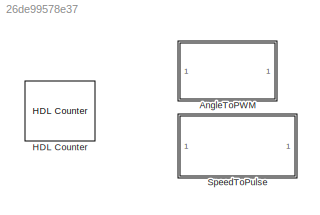
MODEL slx_26de99578e37
KIND model
CONFIG AbsTol = auto
CONFIG EnableMultiTasking = off
CONFIG FixedStep = 1
CONFIG MaxStep = auto
CONFIG MinStep = auto
CONFIG RelTol = 1e-3
CONFIG SampleTimeConstraint = Unconstrained
CONFIG Solver = FixedStepDiscrete
CONFIG SolverName = FixedStepDiscrete
CONFIG StartTime = 0.0
CONFIG StopTime = 5000
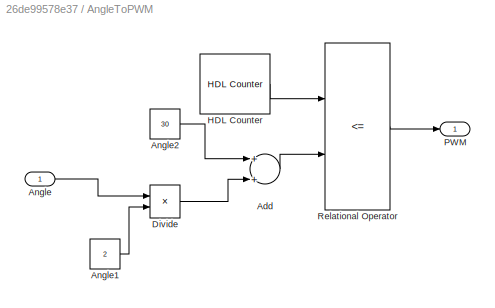
BLOCK [SubSystem] AngleToPWM
  Ports = [1, 1]
  RequestExecContextInheritance = off
  Variant = off
BLOCK [Sum] AngleToPWM/Add
  InputSameDT = off
  OutDataTypeStr = Inherit: Inherit via internal rule
  Ports = [2, 1]
  SaturateOnIntegerOverflow = off
BLOCK [Inport] AngleToPWM/Angle
  IconDisplay = Port number
BLOCK [Constant] AngleToPWM/Angle1
  OutDataTypeStr = uint8
  Value = 2
BLOCK [Constant] AngleToPWM/Angle2
  OutDataTypeStr = uint8
  Value = 30
BLOCK [Product] AngleToPWM/Divide
  InputSameDT = off
  Inputs = */
  OutDataTypeStr = Inherit: Inherit via internal rule
  Ports = [2, 1]
BLOCK [Reference] AngleToPWM/HDL Counter  REF=hdlsllib/HDL Operations/HDL Counter
  Ports = [0, 1]
  SourceBlock = hdlsllib/HDL Operations/HDL Counter
  SourceProductBaseCode = HD
  SourceProductName = HDL Coder
  SourceType = HDL Counter
BLOCK [Outport] AngleToPWM/PWM
  IconDisplay = Port number
BLOCK [RelationalOperator] AngleToPWM/Relational Operator
  InputSameDT = off
  Operator = <=
  OutDataTypeStr = boolean
  Ports = [2, 1]
  RndMeth = Simplest
BLOCK [Reference] HDL Counter  REF=hdlsllib/HDL Operations/HDL Counter
  Ports = [2, 1]
  SourceBlock = hdlsllib/HDL Operations/HDL Counter
  SourceProductBaseCode = HD
  SourceProductName = HDL Coder
  SourceType = HDL Counter
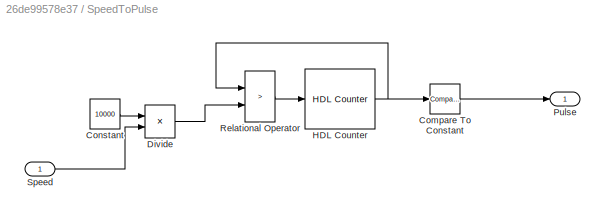
BLOCK [SubSystem] SpeedToPulse
  Ports = [1, 1]
  RequestExecContextInheritance = off
  Variant = off
BLOCK [Reference] SpeedToPulse/Compare To Constant  REF=simulink/Logic and Bit
Operations/Compare
To Constant
  Ports = [1, 1]
  SourceBlock = simulink/Logic and Bit\nOperations/Compare\nTo Constant
  SourceProductBaseCode = SL
  SourceProductName = Simulink
  SourceType = Compare To Constant
BLOCK [Constant] SpeedToPulse/Constant
  Value = 10000
BLOCK [Product] SpeedToPulse/Divide
  InputSameDT = off
  Inputs = */
  OutDataTypeStr = Inherit: Inherit via internal rule
  Ports = [2, 1]
BLOCK [Reference] SpeedToPulse/HDL Counter  REF=hdlsllib/HDL Operations/HDL Counter
  Ports = [1, 1]
  SourceBlock = hdlsllib/HDL Operations/HDL Counter
  SourceProductBaseCode = HD
  SourceProductName = HDL Coder
  SourceType = HDL Counter
BLOCK [Outport] SpeedToPulse/Pulse
  IconDisplay = Port number
BLOCK [RelationalOperator] SpeedToPulse/Relational Operator
  InputSameDT = off
  Operator = >
  OutDataTypeStr = boolean
  Ports = [2, 1]
BLOCK [Inport] SpeedToPulse/Speed
  IconDisplay = Port number
  OutDataTypeStr = uint8
LINE AngleToPWM/Add:1 -> AngleToPWM/Relational Operator:2
LINE AngleToPWM/Angle1:1 -> AngleToPWM/Divide:2
LINE AngleToPWM/Angle2:1 -> AngleToPWM/Add:1
LINE AngleToPWM/Angle:1 -> AngleToPWM/Divide:1
LINE AngleToPWM/Divide:1 -> AngleToPWM/Add:2
LINE AngleToPWM/HDL Counter:1 -> AngleToPWM/Relational Operator:1
LINE AngleToPWM/Relational Operator:1 -> AngleToPWM/PWM:1
LINE SpeedToPulse/Compare To Constant:1 -> SpeedToPulse/Pulse:1
LINE SpeedToPulse/Constant:1 -> SpeedToPulse/Divide:1
LINE SpeedToPulse/Divide:1 -> SpeedToPulse/Relational Operator:2
NET SpeedToPulse/HDL Counter:1 -> SpeedToPulse/Compare To Constant:1, SpeedToPulse/Relational Operator:1
LINE SpeedToPulse/Relational Operator:1 -> SpeedToPulse/HDL Counter:1
LINE SpeedToPulse/Speed:1 -> SpeedToPulse/Divide:2
note: NET lines group one-source signal fan-out (src -> all destinations, sorted); 1:1 wires keep LINE
